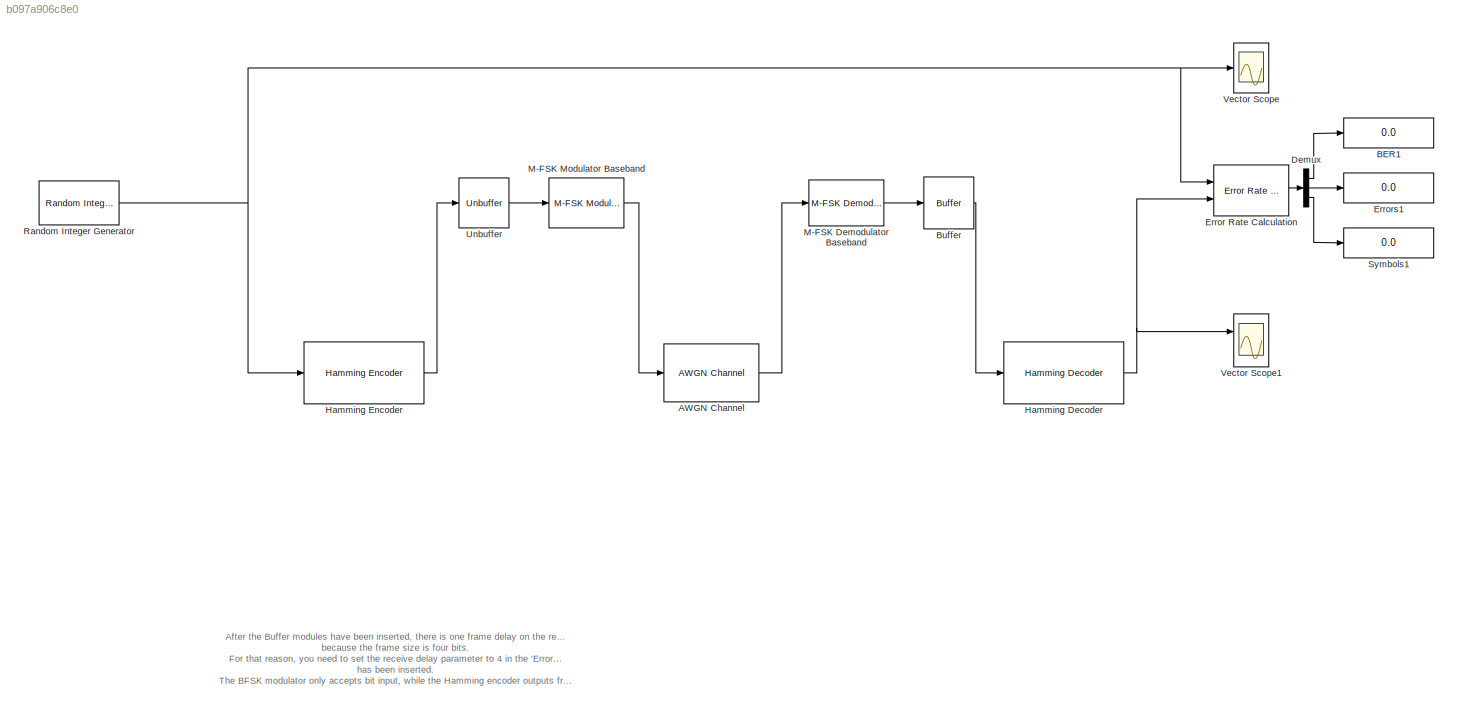
MODEL slx_b097a906c8e0
KIND model
CONFIG AbsTol = auto
CONFIG EnableMultiTasking = on
CONFIG FixedStep = auto
CONFIG MaxStep = auto
CONFIG MinStep = auto
CONFIG RelTol = 1e-3
CONFIG SampleTimeConstraint = Unconstrained
CONFIG Solver = ode45
CONFIG SolverName = ode45
CONFIG StartTime = 0.0
CONFIG StopTime = 1
BLOCK [Reference] AWGN Channel  REF=commchan3/AWGN
Channel
  Ports = [1, 1]
  SourceBlock = commchan3/AWGN\nChannel
  SourceProductBaseCode = CM
  SourceProductName = Communications Toolbox
  SourceType = AWGN Channel
  UserDataPersistent = on
BLOCK [Display] BER1
  Decimation = 1
  Ports = [1]
BLOCK [Buffer] Buffer
  N = 7
BLOCK [Demux] Demux
  DisplayOption = bar
  Outputs = 3
  Ports = [1, 3]
BLOCK [Reference] Error Rate Calculation  REF=commsink2/Error Rate
Calculation
  Ports = [2, 1]
  SourceBlock = commsink2/Error Rate\nCalculation
  SourceProductBaseCode = CM
  SourceProductName = Communications Toolbox
  SourceType = Error Rate Calculation
BLOCK [Display] Errors1
  Decimation = 1
  Ports = [1]
BLOCK [Reference] Hamming Decoder  REF=commblkcod2/Hamming Decoder
  Ports = [1, 1]
  SourceBlock = commblkcod2/Hamming Decoder
  SourceProductBaseCode = CM
  SourceProductName = Communications Toolbox
  SourceType = Hamming Decoder
BLOCK [Reference] Hamming Encoder  REF=commblkcod2/Hamming Encoder
  Ports = [1, 1]
  SourceBlock = commblkcod2/Hamming Encoder
  SourceProductBaseCode = CM
  SourceProductName = Communications Toolbox
  SourceType = Hamming Encoder
BLOCK [Reference] M-FSK Demodulator Baseband  REF=commdigbbndfm2/M-FSK
Demodulator
Baseband
  Ports = [1, 1]
  SourceBlock = commdigbbndfm2/M-FSK\nDemodulator\nBaseband
  SourceProductBaseCode = CM
  SourceProductName = Communications Toolbox
  SourceType = M-FSK Demodulator Baseband
  UserDataPersistent = on
BLOCK [Reference] M-FSK Modulator Baseband  REF=commdigbbndfm2/M-FSK
Modulator
Baseband
  Ports = [1, 1]
  SourceBlock = commdigbbndfm2/M-FSK\nModulator\nBaseband
  SourceProductBaseCode = CM
  SourceProductName = Communications Toolbox
  SourceType = M-FSK Modulator Baseband
  UserDataPersistent = on
BLOCK [Reference] Random Integer Generator  REF=commrandsrc2/Random Integer
Generator
  Ports = [0, 1]
  SourceBlock = commrandsrc2/Random Integer\nGenerator
  SourceType = Random Integer Generator
BLOCK [Display] Symbols1
  Decimation = 1
  Ports = [1]
BLOCK [Unbuffer] Unbuffer
  Ports = [1, 1]
BLOCK [Scope] Vector Scope
  DefaultConfigurationName = spbscopes.TimeScopeBlockCfg
  Floating = off
  NumInputPorts = 1
  Ports = [1]
  ScopeSpecificationString = spbscopes.TimeScopeBlockCfg('CurrentConfiguration', extmgr.ConfigurationSet(extmgr.Configuration('Core','General UI',true),extmgr.Configuration('Core','Source UI',true),extmgr.Configuration('Sources','WiredSimulink',true,'DataLoggingLimitDataPoints',true,'DataLoggingDecimateData',true,'DataLoggingDecimation','1','DataLoggingSaveFormat','Array'),extmgr.Configuration('Visuals','Time Domain',true,'Di...<+1632ch>
BLOCK [Scope] Vector Scope1
  DefaultConfigurationName = spbscopes.TimeScopeBlockCfg
  Floating = off
  NumInputPorts = 2
  Ports = [2]
  ScopeSpecificationString = spbscopes.TimeScopeBlockCfg('CurrentConfiguration', extmgr.ConfigurationSet(extmgr.Configuration('Core','General UI',true),extmgr.Configuration('Core','Source UI',true),extmgr.Configuration('Sources','WiredSimulink',true,'DataLoggingLimitDataPoints',true,'DataLoggingDecimateData',true,'DataLoggingDecimation','1','DataLoggingSaveFormat','Array'),extmgr.Configuration('Visuals','Time Domain',true,'Di...<+1654ch>
ANNOTATION (root): After the Buffer modules have been inserted, there is one frame delay on the receiver side. One frame delay corresponds to 4 bits delay in this specific example because the frame size is four bits. For that reason, you need to set the receive delay parameter to 4 in the 'Error rate calculation' module. This, however, only needs to be done after the buffer module has been inserted. The BFSK modulat...<+154ch>
LINE AWGN Channel:1 -> M-FSK Demodulator Baseband:1
LINE Buffer:1 -> Hamming Decoder:1
LINE Demux:1 -> BER1:1
LINE Demux:2 -> Errors1:1
LINE Demux:3 -> Symbols1:1
LINE Error Rate Calculation:1 -> Demux:1
NET Hamming Decoder:1 -> Error Rate Calculation:2, Vector Scope1:1
LINE Hamming Encoder:1 -> Unbuffer:1
LINE M-FSK Demodulator Baseband:1 -> Buffer:1
LINE M-FSK Modulator Baseband:1 -> AWGN Channel:1
NET Random Integer Generator:1 -> Error Rate Calculation:1, Hamming Encoder:1, Vector Scope:1
LINE Unbuffer:1 -> M-FSK Modulator Baseband:1
note: NET lines group one-source signal fan-out (src -> all destinations, sorted); 1:1 wires keep LINE
